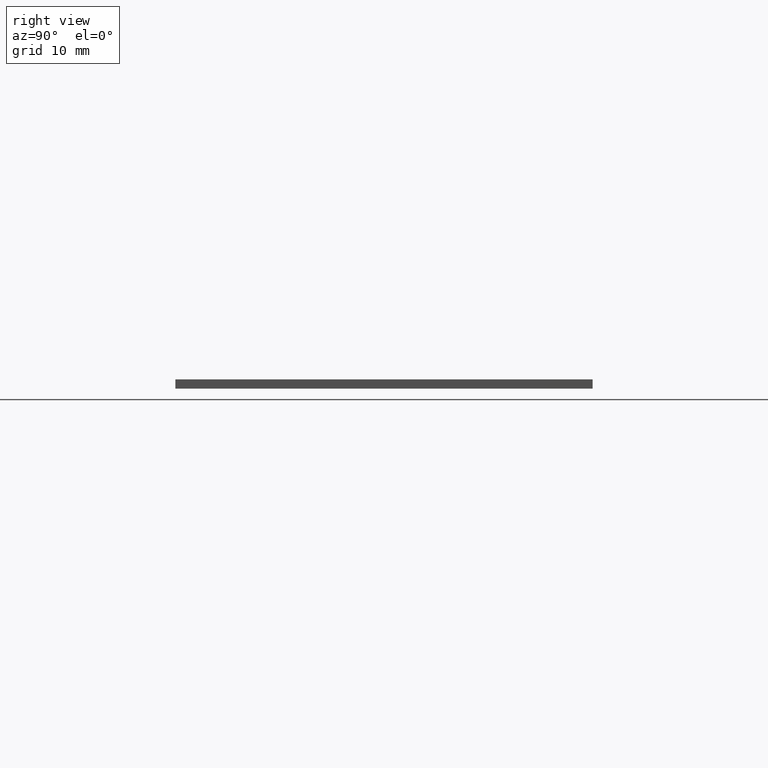
[diagram: clean part render]
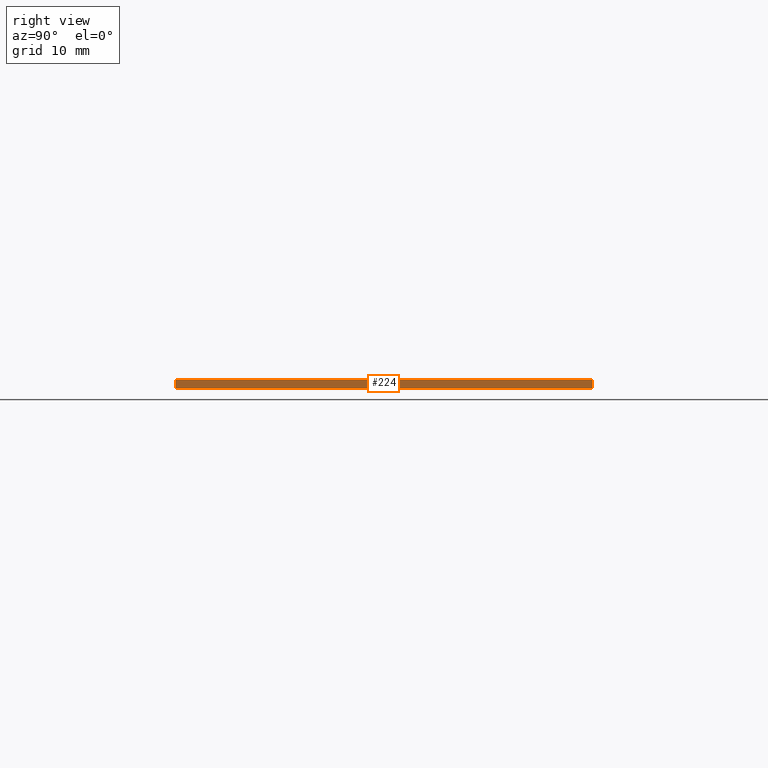
[diagram: same view with one face highlighted and labeled with its STEP entity id]
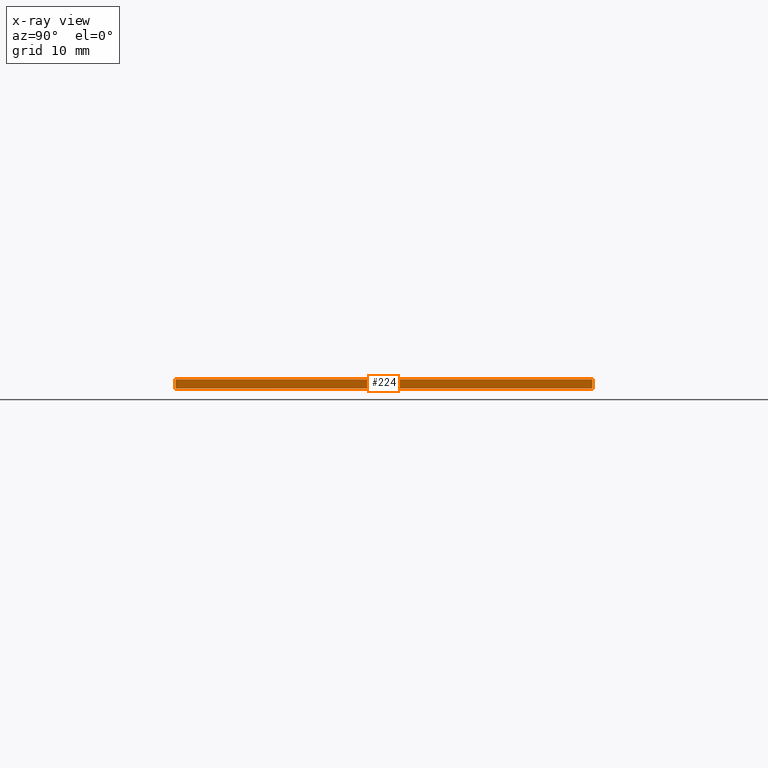
[diagram: x-ray of the same camera — body ghosted, the highlighted face saturated]
A machine part, right view. The second image highlights one B-rep face of the part: STEP entity #224.
The next image is the same camera in x-ray: the body ghosted, the highlighted face saturated — about 0% of this face is hidden behind the body in this view.
In plain terms, the highlighted planar face has unit normal (-1, 0, 0).
Its self-contained STEP definition (entity closure, byte-faithful):
#3 = EDGE_CURVE ( 'NONE', #109, #54, #173, .T. ) ;
#4 = LINE ( 'NONE', #106, #259 ) ;
#12 = DIRECTION ( 'NONE',  ( 1.387778780781445700E-016, 1.000000000000000000, -0.0000000000000000000 ) ) ;
#20 = DIRECTION ( 'NONE',  ( 1.387778780781445700E-016, 1.000000000000000000, -0.0000000000000000000 ) ) ;
#40 = VECTOR ( 'NONE', #12, 1000.000000000000000 ) ;
#41 = DIRECTION ( 'NONE',  ( -0.0000000000000000000, -0.0000000000000000000, -1.000000000000000000 ) ) ;
#42 = CARTESIAN_POINT ( 'NONE',  ( 46.99999999999998600, -25.00000000000000000, 1.100000000000000100 ) ) ;
#54 = VERTEX_POINT ( 'NONE', #262 ) ;
#60 = LINE ( 'NONE', #42, #247 ) ;
#62 = AXIS2_PLACEMENT_3D ( 'NONE', #163, #240, #267 ) ;
#65 = PLANE ( 'NONE',  #62 ) ;
#67 = ORIENTED_EDGE ( 'NONE', *, *, #3, .F. ) ;
#71 = EDGE_CURVE ( 'NONE', #54, #284, #4, .T. ) ;
#78 = ORIENTED_EDGE ( 'NONE', *, *, #71, .F. ) ;
#87 = LINE ( 'NONE', #288, #125 ) ;
#94 = CARTESIAN_POINT ( 'NONE',  ( 46.99999999999999300, 25.00000000000000000, 0.0000000000000000000 ) ) ;
#97 = ORIENTED_EDGE ( 'NONE', *, *, #307, .T. ) ;
#106 = CARTESIAN_POINT ( 'NONE',  ( 46.99999999999999300, 25.00000000000000000, 1.100000000000000100 ) ) ;
#109 = VERTEX_POINT ( 'NONE', #234 ) ;
#125 = VECTOR ( 'NONE', #20, 1000.000000000000000 ) ;
#163 = CARTESIAN_POINT ( 'NONE',  ( 46.99999999999999300, 25.00000000000000000, 1.100000000000000100 ) ) ;
#173 = LINE ( 'NONE', #258, #40 ) ;
#181 = EDGE_CURVE ( 'NONE', #109, #290, #60, .T. ) ;
#187 = EDGE_LOOP ( 'NONE', ( #97, #78, #67, #230 ) ) ;
#213 = FACE_OUTER_BOUND ( 'NONE', #187, .T. ) ;
#224 = ADVANCED_FACE ( 'NONE', ( #213 ), #65, .F. ) ;
#230 = ORIENTED_EDGE ( 'NONE', *, *, #181, .T. ) ;
#234 = CARTESIAN_POINT ( 'NONE',  ( 46.99999999999998600, -25.00000000000000000, 1.100000000000000100 ) ) ;
#240 = DIRECTION ( 'NONE',  ( -1.000000000000000000, 1.387778780781445700E-016, 0.0000000000000000000 ) ) ;
#247 = VECTOR ( 'NONE', #41, 1000.000000000000000 ) ;
#258 = CARTESIAN_POINT ( 'NONE',  ( 46.99999999999999300, 25.00000000000000000, 1.100000000000000100 ) ) ;
#259 = VECTOR ( 'NONE', #279, 1000.000000000000000 ) ;
#262 = CARTESIAN_POINT ( 'NONE',  ( 46.99999999999999300, 25.00000000000000000, 1.100000000000000100 ) ) ;
#264 = CARTESIAN_POINT ( 'NONE',  ( 46.99999999999998600, -25.00000000000000000, 0.0000000000000000000 ) ) ;
#267 = DIRECTION ( 'NONE',  ( -1.387778780781445700E-016, -1.000000000000000000, 0.0000000000000000000 ) ) ;
#279 = DIRECTION ( 'NONE',  ( -0.0000000000000000000, -0.0000000000000000000, -1.000000000000000000 ) ) ;
#284 = VERTEX_POINT ( 'NONE', #94 ) ;
#288 = CARTESIAN_POINT ( 'NONE',  ( 46.99999999999999300, 25.00000000000000000, 0.0000000000000000000 ) ) ;
#290 = VERTEX_POINT ( 'NONE', #264 ) ;
#307 = EDGE_CURVE ( 'NONE', #290, #284, #87, .T. ) ;